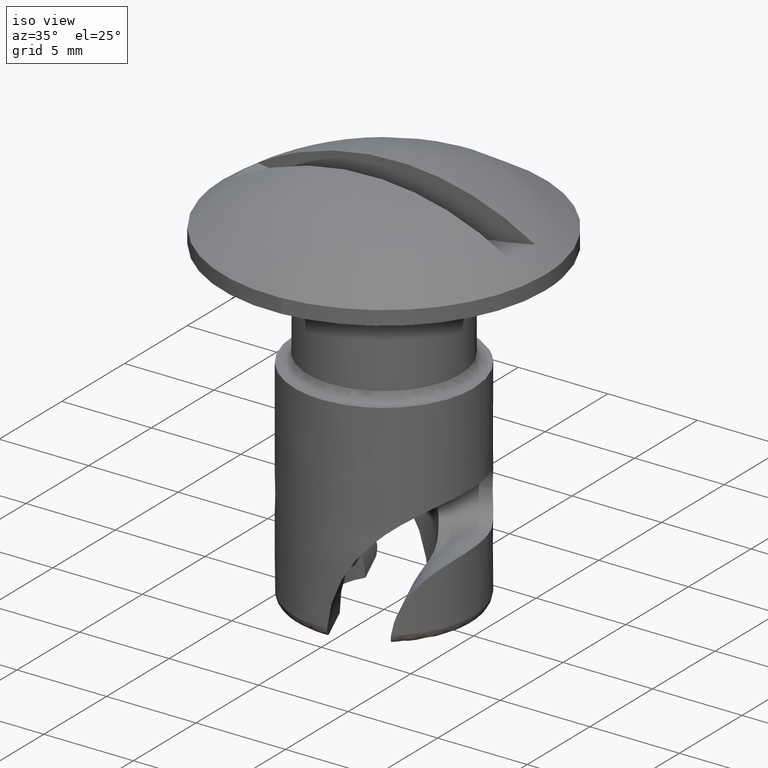
[diagram: clean part render]
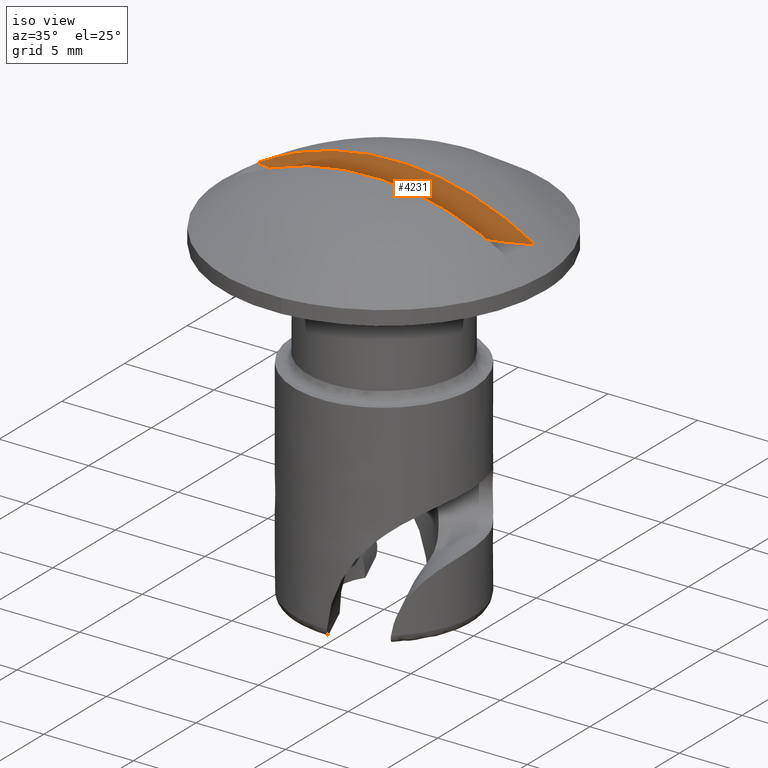
[diagram: same view with one face highlighted and labeled with its STEP entity id]
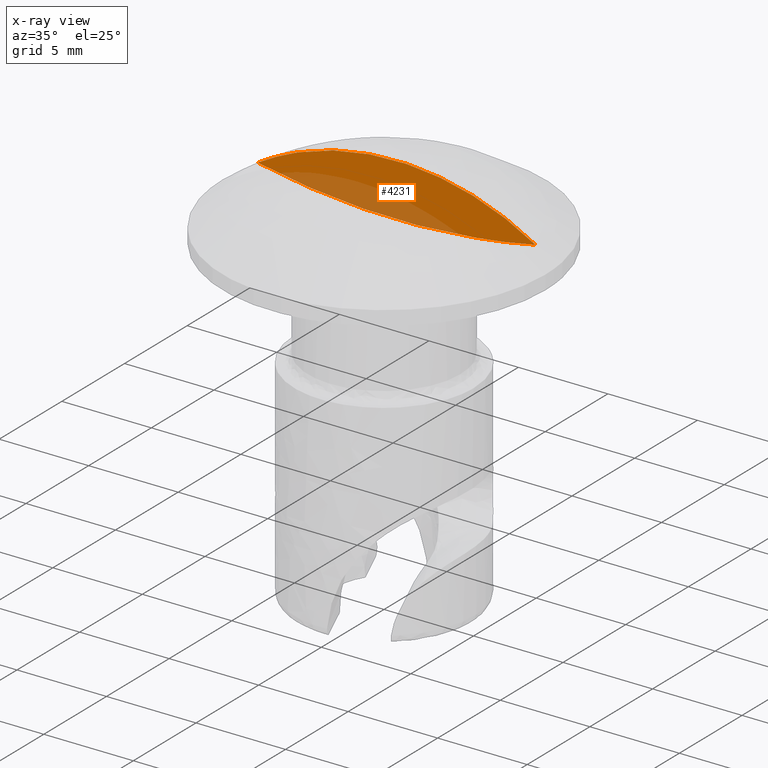
[diagram: x-ray of the same camera — body ghosted, the highlighted face saturated]
A machine part, iso view. The second image highlights one B-rep face of the part: STEP entity #4231.
The next image is the same camera in x-ray: the body ghosted, the highlighted face saturated — about 28% of this face is hidden behind the body in this view.
In plain terms, the highlighted face is a freeform B-spline surface patch.
Its self-contained STEP definition (entity closure, byte-faithful):
#4194=CARTESIAN_POINT('',(-8.531151693891998,1.0,3.914824226066727));
#4195=CARTESIAN_POINT('',(8.531152109972224,1.0,3.914824226066727));
#4196=CARTESIAN_POINT('',(-8.531151693891998,1.0,0.651819374076843));
#4197=CARTESIAN_POINT('',(8.531152109972224,1.0,0.651819374076843));
#4198=B_SPLINE_SURFACE_WITH_KNOTS('',1,1,((#4194,#4196),(#4195,#4197)),.UNSPECIFIED.,.F.,.F.,.U.,(2,2),(2,2),(0.0,17.062303803864221),(0.0,3.263004851989884),.UNSPECIFIED.);
#4199=CARTESIAN_POINT('',(7.756297594288951,1.0,1.600005047999795));
#4200=VERTEX_POINT('',#4199);
#4201=CARTESIAN_POINT('',(-7.756297594288951,1.0,1.600005047999795));
#4202=VERTEX_POINT('',#4201);
#4203=CARTESIAN_POINT('',(7.756297594288951,1.0,1.600005047999783));
#4204=CARTESIAN_POINT('',(3.469447E-015,1.0,6.300019137504304));
#4205=CARTESIAN_POINT('',(-7.756297594288944,1.0,1.600005047999785));
#4213=(BOUNDED_CURVE()B_SPLINE_CURVE(2,(#4203,#4204,#4205),.UNSPECIFIED.,.F.,.U.)CURVE()GEOMETRIC_REPRESENTATION_ITEM()QUASI_UNIFORM_CURVE()RATIONAL_B_SPLINE_CURVE((1.0,0.855235576435009,1.0))REPRESENTATION_ITEM(''));
#4214=EDGE_CURVE('',#4200,#4202,#4213,.T.);
#4215=ORIENTED_EDGE('',*,*,#4214,.T.);
#4216=CARTESIAN_POINT('',(-7.756297594288955,1.0,1.600005047999786));
#4217=CARTESIAN_POINT('',(-1.127570E-014,1.000000000000000,-0.017203438108147));
#4218=CARTESIAN_POINT('',(7.756297594288945,1.0,1.600005047999786));
#4226=(BOUNDED_CURVE()B_SPLINE_CURVE(2,(#4216,#4217,#4218),.UNSPECIFIED.,.F.,.U.)CURVE()GEOMETRIC_REPRESENTATION_ITEM()QUASI_UNIFORM_CURVE()RATIONAL_B_SPLINE_CURVE((1.0,0.978947314526324,1.0))REPRESENTATION_ITEM(''));
#4227=EDGE_CURVE('',#4202,#4200,#4226,.T.);
#4228=ORIENTED_EDGE('',*,*,#4227,.T.);
#4229=EDGE_LOOP('',(#4215,#4228));
#4230=FACE_OUTER_BOUND('',#4229,.T.);
#4231=ADVANCED_FACE('',(#4230),#4198,.F.);